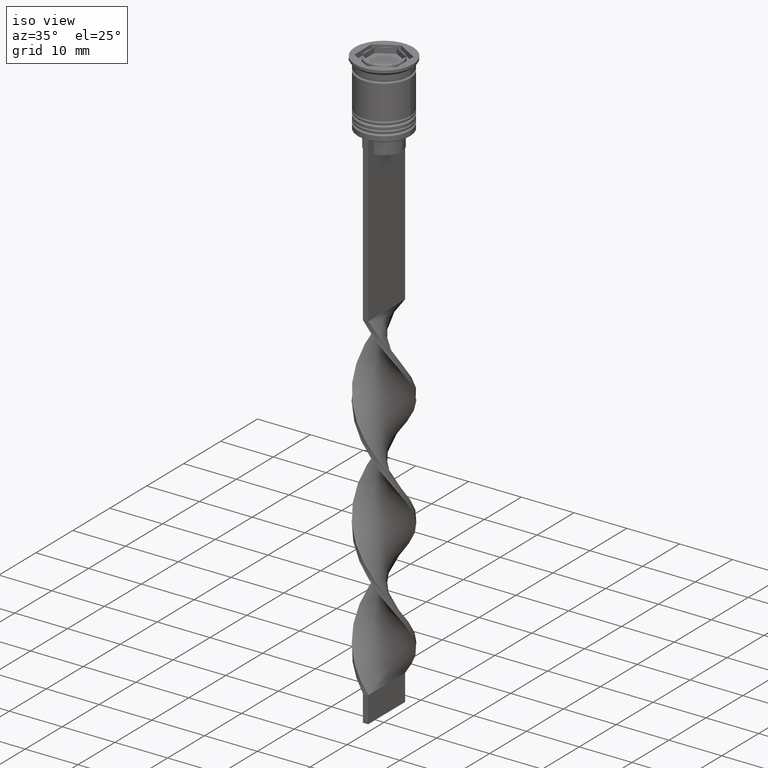
[diagram: clean part render]
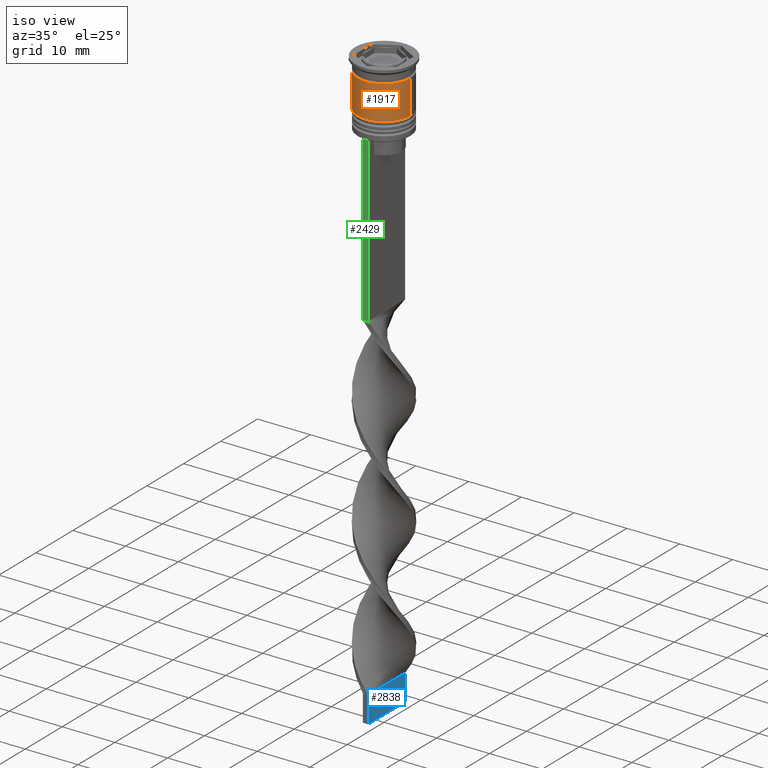
[diagram: same view with three faces highlighted in distinct colors, each labeled with its STEP entity id]
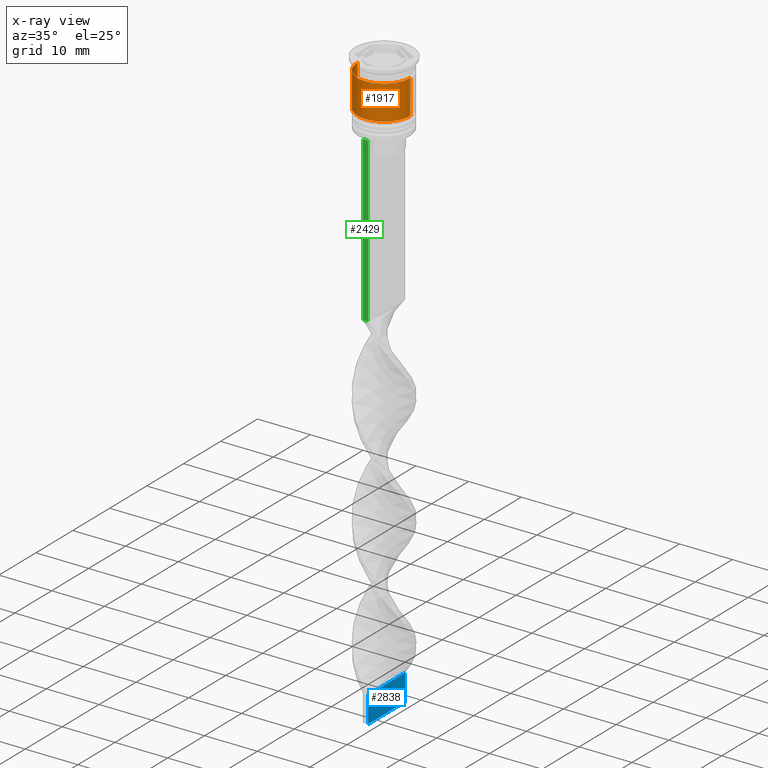
[diagram: x-ray of the same camera — body ghosted, the three highlighted faces saturated]
A machine part, iso view with three faces highlighted in distinct colors.
The next image is the same camera in x-ray (body ghosted, the three faces saturated) — at least one of them is partly hidden behind the body in this view.
Their STEP definitions:

[orange] entity #1917 — the highlighted cylindrical surface (edge-blend (fillet) strip) has radius 5 mm, axis along (-0, -0, 1).
#39 = AXIS2_PLACEMENT_3D ( 'NONE', #1241, #941, #2099 ) ;
#105 = CIRCLE ( 'NONE', #39, 4.999999999999999112 ) ;
#733 = VERTEX_POINT ( 'NONE', #1870 ) ;
#763 = CARTESIAN_POINT ( 'NONE',  ( 5.000000000000000888, 0.000000000000000000, -9.000000000000001776 ) ) ;
#771 = VERTEX_POINT ( 'NONE', #763 ) ;
#828 = CARTESIAN_POINT ( 'NONE',  ( -5.000000000000000888, 6.123233995736767268E-16, -9.000000000000001776 ) ) ;
#864 = CARTESIAN_POINT ( 'NONE',  ( 0.000000000000000000, 0.000000000000000000, 0.000000000000000000 ) ) ;
#941 = DIRECTION ( 'NONE',  ( -0.000000000000000000, -0.000000000000000000, 1.000000000000000000 ) ) ;
#1074 = CARTESIAN_POINT ( 'NONE',  ( -5.000000000000000000, 6.123233995736766282E-16, 0.000000000000000000 ) ) ;
#1095 = DIRECTION ( 'NONE',  ( -0.000000000000000000, -0.000000000000000000, 1.000000000000000000 ) ) ;
#1096 = CIRCLE ( 'NONE', #2346, 5.000000000000000888 ) ;
#1119 = VERTEX_POINT ( 'NONE', #3046 ) ;
#1241 = CARTESIAN_POINT ( 'NONE',  ( 0.000000000000000000, 0.000000000000000000, -2.500000000000000000 ) ) ;
#1368 = CARTESIAN_POINT ( 'NONE',  ( 0.000000000000000000, 0.000000000000000000, -9.000000000000001776 ) ) ;
#1548 = DIRECTION ( 'NONE',  ( 1.000000000000000000, 0.000000000000000000, 0.000000000000000000 ) ) ;
#1714 = FACE_OUTER_BOUND ( 'NONE', #2750, .T. ) ;
#1870 = CARTESIAN_POINT ( 'NONE',  ( -4.999999999999999112, 6.123233995736766282E-16, -2.500000000000000000 ) ) ;
#1917 = ADVANCED_FACE ( 'NONE', ( #1714 ), #2843, .T. ) ;
#2072 = EDGE_CURVE ( 'NONE', #733, #1119, #105, .T. ) ;
#2099 = DIRECTION ( 'NONE',  ( 1.000000000000000000, 0.000000000000000000, 0.000000000000000000 ) ) ;
#2237 = DIRECTION ( 'NONE',  ( 1.000000000000000000, 0.000000000000000000, 0.000000000000000000 ) ) ;
#2272 = EDGE_CURVE ( 'NONE', #771, #1119, #3554, .T. ) ;
#2346 = AXIS2_PLACEMENT_3D ( 'NONE', #1368, #1095, #2237 ) ;
#2377 = ORIENTED_EDGE ( 'NONE', *, *, #2072, .F. ) ;
#2405 = VECTOR ( 'NONE', #3305, 1000.000000000000000 ) ;
#2431 = VERTEX_POINT ( 'NONE', #828 ) ;
#2598 = ORIENTED_EDGE ( 'NONE', *, *, #3032, .F. ) ;
#2614 = EDGE_CURVE ( 'NONE', #2431, #771, #1096, .T. ) ;
#2676 = ORIENTED_EDGE ( 'NONE', *, *, #2272, .T. ) ;
#2750 = EDGE_LOOP ( 'NONE', ( #2598, #3600, #2676, #2377 ) ) ;
#2843 = CYLINDRICAL_SURFACE ( 'NONE', #3268, 5.000000000000000000 ) ;
#3032 = EDGE_CURVE ( 'NONE', #2431, #733, #3634, .T. ) ;
#3046 = CARTESIAN_POINT ( 'NONE',  ( 4.999999999999999112, 0.000000000000000000, -2.500000000000000000 ) ) ;
#3048 = DIRECTION ( 'NONE',  ( -0.000000000000000000, -0.000000000000000000, 1.000000000000000000 ) ) ;
#3143 = DIRECTION ( 'NONE',  ( -0.000000000000000000, -0.000000000000000000, 1.000000000000000000 ) ) ;
#3268 = AXIS2_PLACEMENT_3D ( 'NONE', #864, #3143, #1548 ) ;
#3305 = DIRECTION ( 'NONE',  ( -0.000000000000000000, -0.000000000000000000, 1.000000000000000000 ) ) ;
#3317 = CARTESIAN_POINT ( 'NONE',  ( 5.000000000000000000, 0.000000000000000000, 0.000000000000000000 ) ) ;
#3445 = VECTOR ( 'NONE', #3048, 1000.000000000000000 ) ;
#3554 = LINE ( 'NONE', #3317, #3445 ) ;
#3600 = ORIENTED_EDGE ( 'NONE', *, *, #2614, .T. ) ;
#3634 = LINE ( 'NONE', #1074, #2405 ) ;

[blue] entity #2838 — the highlighted planar face has unit normal (-1, 0, 0).
#56 = CARTESIAN_POINT ( 'NONE',  ( 0.5000000000000002220, 1.666666666666666075, -107.5000000000000000 ) ) ;
#136 = EDGE_CURVE ( 'NONE', #385, #1542, #2490, .T. ) ;
#375 = EDGE_CURVE ( 'NONE', #1599, #3399, #495, .T. ) ;
#383 = VECTOR ( 'NONE', #3035, 1000.000000000000000 ) ;
#385 = VERTEX_POINT ( 'NONE', #2832 ) ;
#495 = LINE ( 'NONE', #510, #1833 ) ;
#510 = CARTESIAN_POINT ( 'NONE',  ( 0.5000000000000006661, 4.999999999999999112, -112.5000000000000000 ) ) ;
#743 = LINE ( 'NONE', #3611, #383 ) ;
#870 = FACE_OUTER_BOUND ( 'NONE', #1383, .T. ) ;
#887 = ORIENTED_EDGE ( 'NONE', *, *, #136, .T. ) ;
#1038 = CARTESIAN_POINT ( 'NONE',  ( 0.4999999999999993339, -5.000000000000000888, -112.5000000000000000 ) ) ;
#1057 = CARTESIAN_POINT ( 'NONE',  ( 0.5000000000000006661, 4.999999999999999112, -112.5000000000000000 ) ) ;
#1169 = ORIENTED_EDGE ( 'NONE', *, *, #3481, .T. ) ;
#1196 = CARTESIAN_POINT ( 'NONE',  ( 0.4999999999999993339, -5.000000000000000888, -112.5000000000000000 ) ) ;
#1383 = EDGE_LOOP ( 'NONE', ( #887, #1739, #2777, #1169 ) ) ;
#1518 = CARTESIAN_POINT ( 'NONE',  ( 0.5000000000000006661, 4.999999999999999112, -107.5000000000000000 ) ) ;
#1542 = VERTEX_POINT ( 'NONE', #2015 ) ;
#1599 = VERTEX_POINT ( 'NONE', #1057 ) ;
#1739 = ORIENTED_EDGE ( 'NONE', *, *, #2389, .F. ) ;
#1756 = DIRECTION ( 'NONE',  ( -1.000000000000000000, 1.301042606982605321E-16, 0.000000000000000000 ) ) ;
#1833 = VECTOR ( 'NONE', #3117, 1000.000000000000000 ) ;
#2015 = CARTESIAN_POINT ( 'NONE',  ( 0.4999999999999993339, -5.000000000000000888, -107.5000000000000000 ) ) ;
#2018 = DIRECTION ( 'NONE',  ( -1.301042606982605321E-16, -1.000000000000000000, 0.000000000000000000 ) ) ;
#2343 = CARTESIAN_POINT ( 'NONE',  ( 0.5000000000000006661, 4.999999999999999112, -112.5000000000000000 ) ) ;
#2389 = EDGE_CURVE ( 'NONE', #3399, #1542, #3473, .T. ) ;
#2490 = B_SPLINE_CURVE_WITH_KNOTS ( 'NONE', 3,
 ( #1518, #56, #3213, #3493 ),
 .UNSPECIFIED., .F., .F.,
 ( 4, 4 ),
 ( 0.000000000000000000, 1.000000000000000000 ),
 .UNSPECIFIED. ) ;
#2621 = PLANE ( 'NONE',  #3658 ) ;
#2777 = ORIENTED_EDGE ( 'NONE', *, *, #375, .F. ) ;
#2832 = CARTESIAN_POINT ( 'NONE',  ( 0.5000000000000006661, 4.999999999999999112, -107.5000000000000000 ) ) ;
#2838 = ADVANCED_FACE ( 'NONE', ( #870 ), #2621, .F. ) ;
#3035 = DIRECTION ( 'NONE',  ( -0.000000000000000000, -0.000000000000000000, 1.000000000000000000 ) ) ;
#3088 = DIRECTION ( 'NONE',  ( -0.000000000000000000, -0.000000000000000000, 1.000000000000000000 ) ) ;
#3117 = DIRECTION ( 'NONE',  ( -1.301042606982605321E-16, -1.000000000000000000, 0.000000000000000000 ) ) ;
#3146 = VECTOR ( 'NONE', #3088, 1000.000000000000000 ) ;
#3213 = CARTESIAN_POINT ( 'NONE',  ( 0.4999999999999997780, -1.666666666666667851, -107.5000000000000000 ) ) ;
#3399 = VERTEX_POINT ( 'NONE', #1038 ) ;
#3473 = LINE ( 'NONE', #1196, #3146 ) ;
#3481 = EDGE_CURVE ( 'NONE', #1599, #385, #743, .T. ) ;
#3493 = CARTESIAN_POINT ( 'NONE',  ( 0.4999999999999993339, -5.000000000000000888, -107.5000000000000000 ) ) ;
#3611 = CARTESIAN_POINT ( 'NONE',  ( 0.5000000000000006661, 4.999999999999999112, -112.5000000000000000 ) ) ;
#3658 = AXIS2_PLACEMENT_3D ( 'NONE', #2343, #1756, #2018 ) ;

[green] entity #2429 — the highlighted planar face has unit normal (0, -1, -0).
#120 = ORIENTED_EDGE ( 'NONE', *, *, #748, .T. ) ;
#145 = DIRECTION ( 'NONE',  ( 0.000000000000000000, 0.000000000000000000, -1.000000000000000000 ) ) ;
#160 = LINE ( 'NONE', #724, #3089 ) ;
#186 = DIRECTION ( 'NONE',  ( 0.000000000000000000, 0.000000000000000000, -1.000000000000000000 ) ) ;
#219 = LINE ( 'NONE', #2700, #222 ) ;
#222 = VECTOR ( 'NONE', #145, 1000.000000000000000 ) ;
#242 = CARTESIAN_POINT ( 'NONE',  ( -0.5000000000000000000, -4.999999999999999112, -12.50000000000000000 ) ) ;
#309 = CARTESIAN_POINT ( 'NONE',  ( 0.5000000000000000000, -4.999999999999999112, -12.50000000000000000 ) ) ;
#422 = ORIENTED_EDGE ( 'NONE', *, *, #1047, .F. ) ;
#724 = CARTESIAN_POINT ( 'NONE',  ( 0.5000000000000000000, -4.999999999999999112, -12.50000000000000000 ) ) ;
#730 = LINE ( 'NONE', #1644, #3618 ) ;
#732 = EDGE_CURVE ( 'NONE', #1516, #1556, #730, .T. ) ;
#736 = VERTEX_POINT ( 'NONE', #2180 ) ;
#748 = EDGE_CURVE ( 'NONE', #2663, #736, #219, .T. ) ;
#765 = VECTOR ( 'NONE', #2116, 1000.000000000000000 ) ;
#915 = ORIENTED_EDGE ( 'NONE', *, *, #732, .F. ) ;
#1008 = AXIS2_PLACEMENT_3D ( 'NONE', #1105, #2517, #2246 ) ;
#1047 = EDGE_CURVE ( 'NONE', #1556, #736, #1882, .T. ) ;
#1105 = CARTESIAN_POINT ( 'NONE',  ( 0.5000000000000000000, -4.999999999999999112, -2.450124378879110054 ) ) ;
#1389 = PLANE ( 'NONE',  #1008 ) ;
#1516 = VERTEX_POINT ( 'NONE', #309 ) ;
#1556 = VERTEX_POINT ( 'NONE', #2864 ) ;
#1644 = CARTESIAN_POINT ( 'NONE',  ( 0.5000000000000000000, -4.999999999999999112, -2.450124378879110054 ) ) ;
#1882 = LINE ( 'NONE', #2735, #765 ) ;
#2116 = DIRECTION ( 'NONE',  ( -1.000000000000000000, 0.000000000000000000, 0.000000000000000000 ) ) ;
#2180 = CARTESIAN_POINT ( 'NONE',  ( -0.5000000000000000000, -4.999999999999999112, -43.50000000000000000 ) ) ;
#2182 = EDGE_CURVE ( 'NONE', #2663, #1516, #160, .T. ) ;
#2197 = DIRECTION ( 'NONE',  ( 1.000000000000000000, 0.000000000000000000, 0.000000000000000000 ) ) ;
#2246 = DIRECTION ( 'NONE',  ( 0.000000000000000000, 0.000000000000000000, -1.000000000000000000 ) ) ;
#2330 = FACE_OUTER_BOUND ( 'NONE', #3539, .T. ) ;
#2393 = ORIENTED_EDGE ( 'NONE', *, *, #2182, .F. ) ;
#2429 = ADVANCED_FACE ( 'NONE', ( #2330 ), #1389, .T. ) ;
#2517 = DIRECTION ( 'NONE',  ( 0.000000000000000000, -1.000000000000000000, -0.000000000000000000 ) ) ;
#2663 = VERTEX_POINT ( 'NONE', #242 ) ;
#2700 = CARTESIAN_POINT ( 'NONE',  ( -0.5000000000000000000, -4.999999999999999112, -2.450124378879110054 ) ) ;
#2735 = CARTESIAN_POINT ( 'NONE',  ( 0.5000000000000000000, -4.999999999999999112, -43.50000000000000000 ) ) ;
#2864 = CARTESIAN_POINT ( 'NONE',  ( 0.5000000000000000000, -4.999999999999999112, -43.50000000000000000 ) ) ;
#3089 = VECTOR ( 'NONE', #2197, 1000.000000000000000 ) ;
#3539 = EDGE_LOOP ( 'NONE', ( #2393, #120, #422, #915 ) ) ;
#3618 = VECTOR ( 'NONE', #186, 1000.000000000000000 ) ;